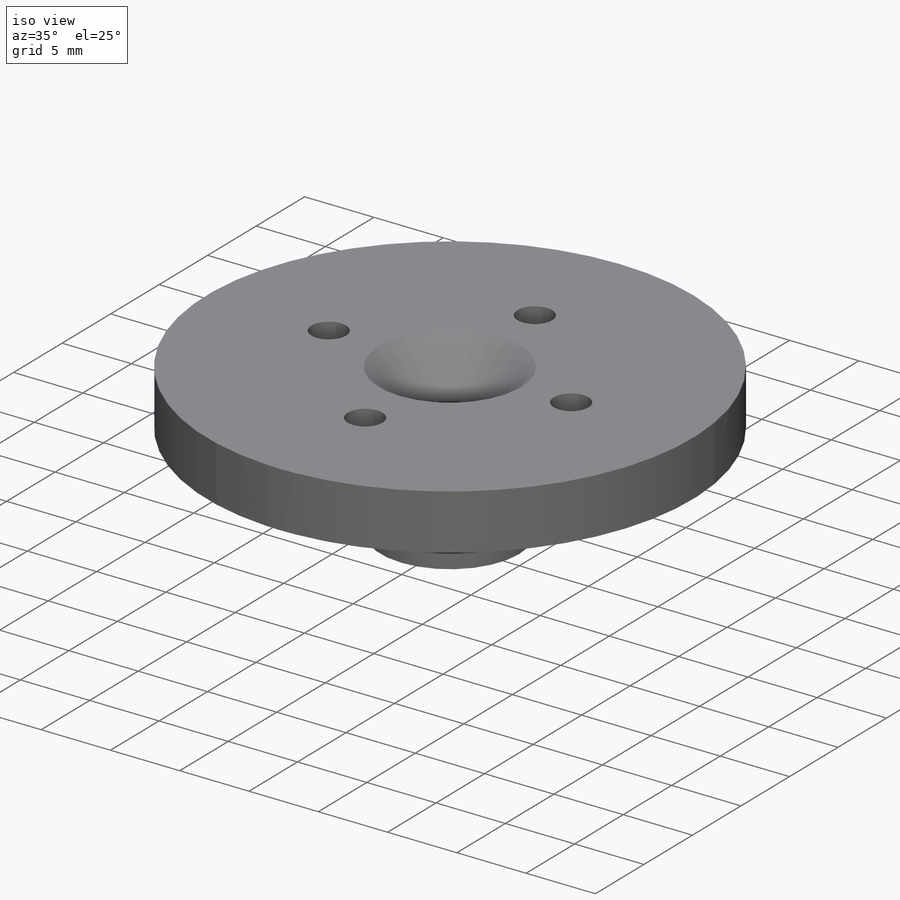
[diagram: iso view]
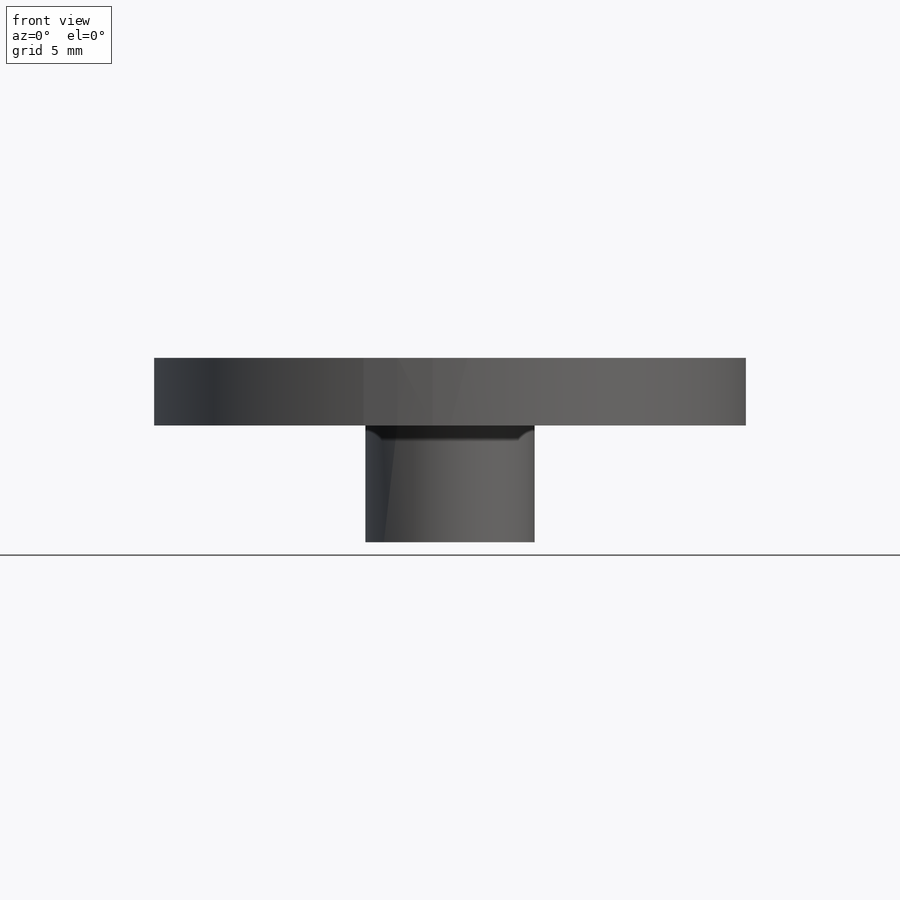
[diagram: front view]
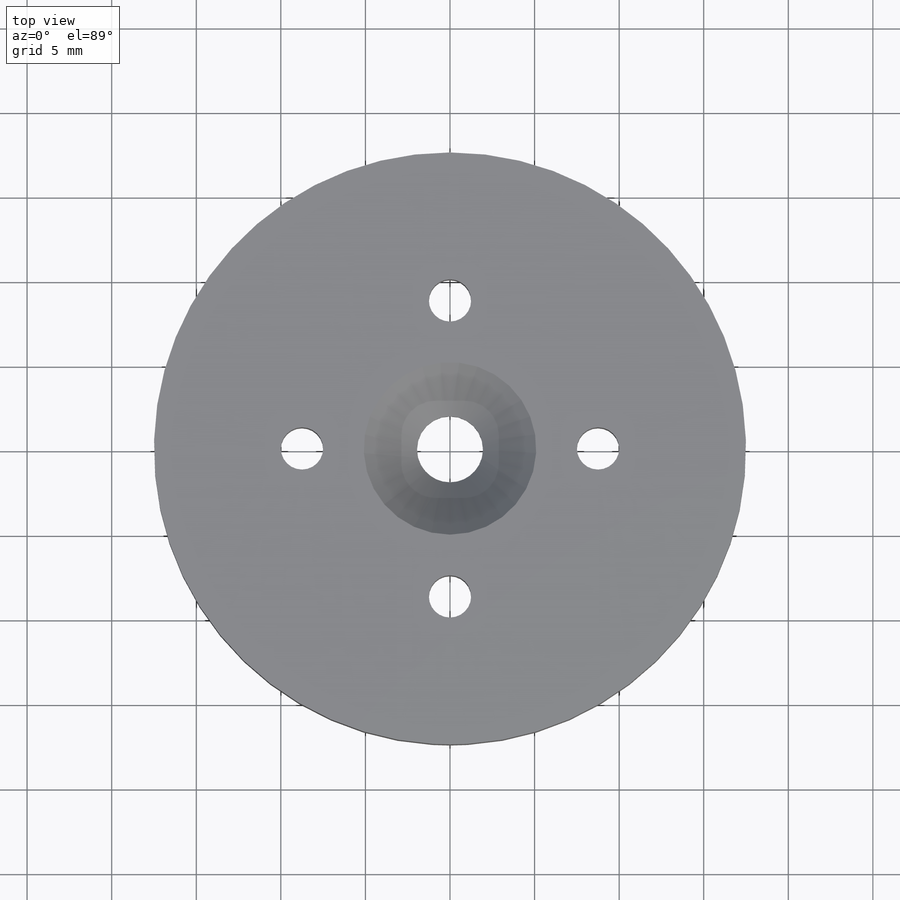
[diagram: top view]
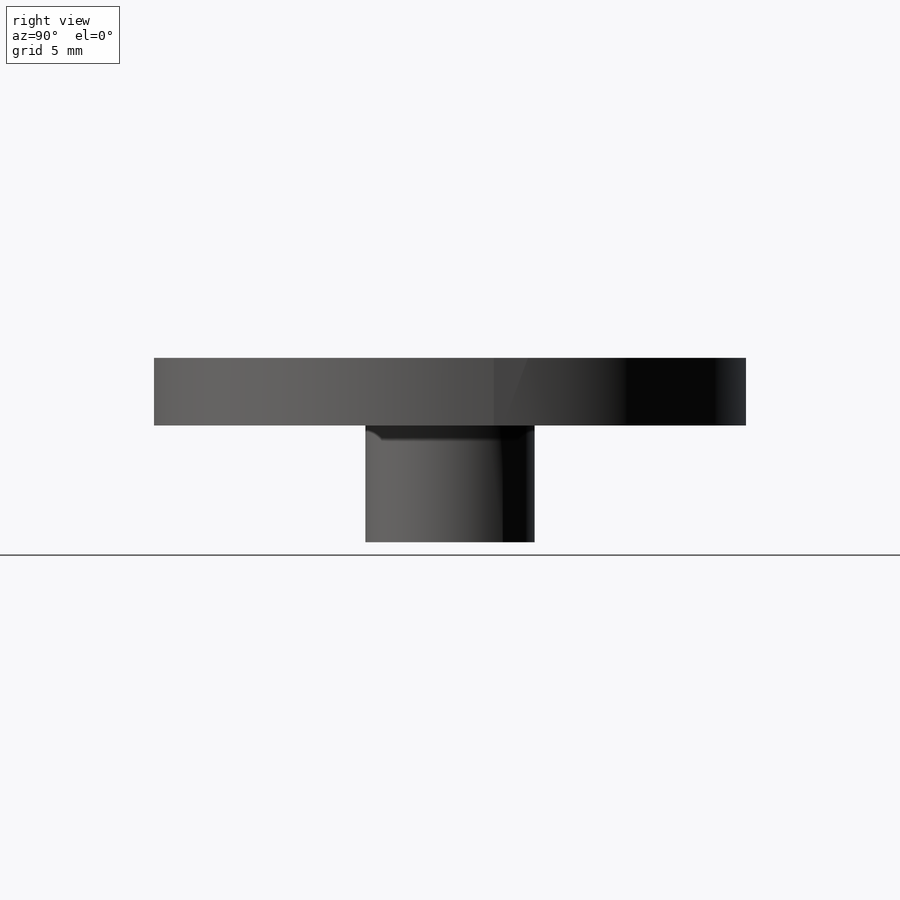
[diagram: right view]
SOLIDWORKS PART (.sldprt)
format: sldprt  version: not decoded by parser v0  size: 188,928 bytes
history: native  units: mm
features: sketch x6, extrude x2, cut_extrude x2, material x1, hole x1 (+12 scaffold rows collapsed)
feature tree (24):
  scaffold x12  (default folders/planes/origin — collapsed)
  material  "Material <not specified>"
  sketch  "Sketch1"  dims[D1=35.0mm]
  extrude  "Boss-Extrude1"  Depth=4mm
  sketch  "Sketch2"  dims[D1=10.0mm]
  extrude  "Boss-Extrude2"  Depth=6.9mm
  sketch  "Sketch3"  dims[D1=~12.730654mm]
  cut_extrude  "Cut-Extrude1"  Depth=6.9mm
  hole  "CSK for M3.5 Flat Head Machine Screw1"  Diameter=3.9mm Depth=10.9mm
  sketch  "Sketch5"
  sketch  "Sketch4"  dims[hole-wizard template sketch: 54 standard entries collapsed; hole parameters kept: c17.Thru Hole Dia.=3.9mm c17.Thru Hole Depth=10.9mm c17.Near C'Sink Dia.=10.2mm c17.D4=~3.666174mm c17.Near C'Sink Angle=90.0deg]
  sketch  "Sketch6"  dims[D1=~34.519317mm]
  cut_extrude  "Cut-Extrude2"  Depth=6.9mm
decode coverage: 10 of 11 modeling features carry decoded parameters
note: ~ marks probable driven/reference dimensions
note: suppression state not decoded; provenance and decode notes live in map.json
